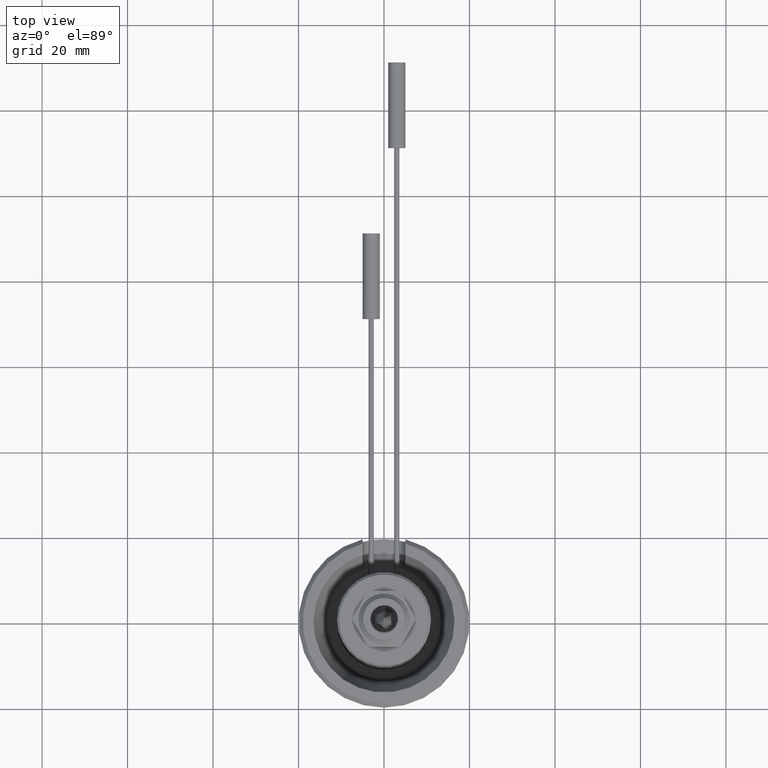
[diagram: clean part render]
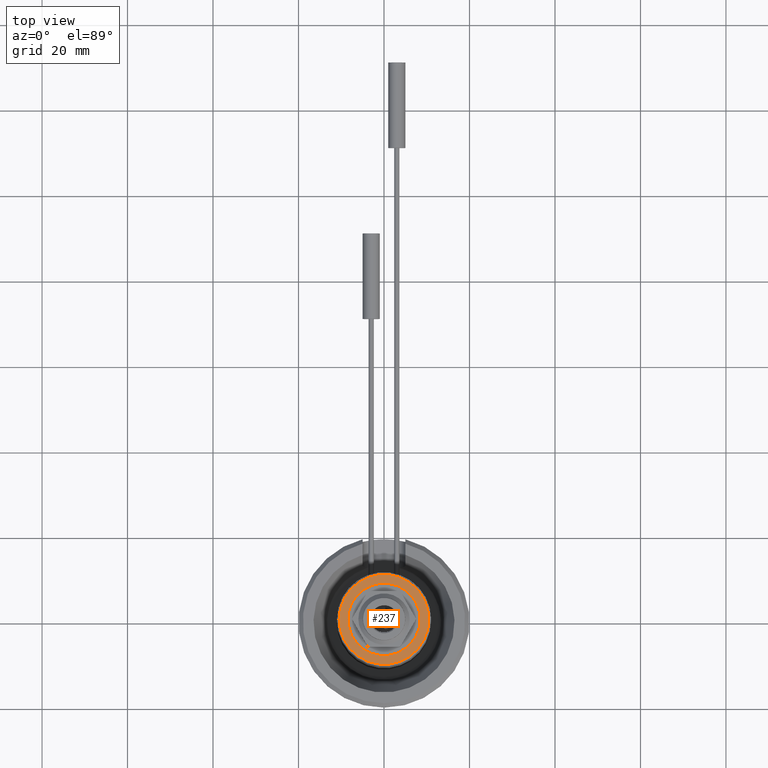
[diagram: same view with one face highlighted and labeled with its STEP entity id]
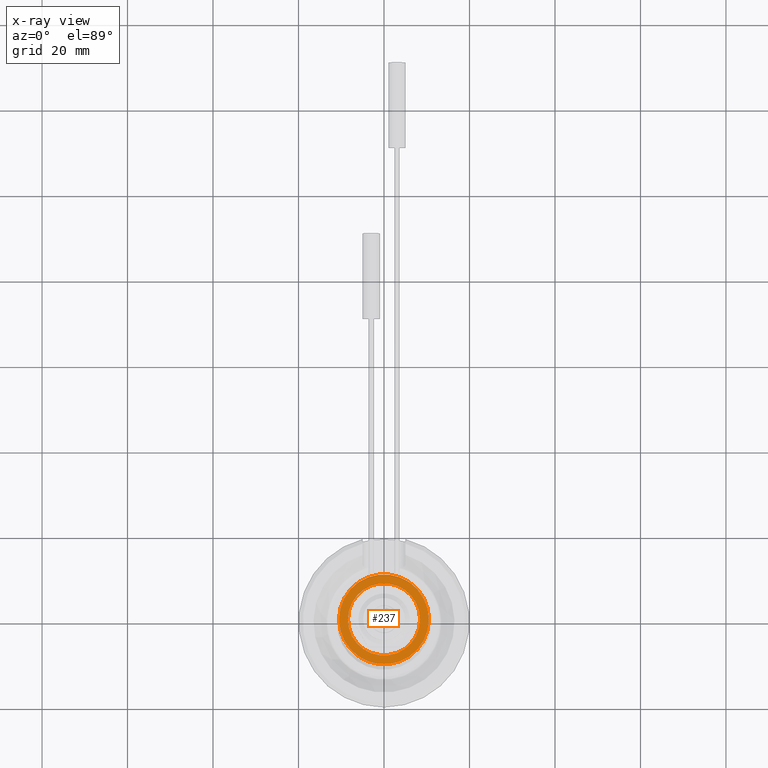
[diagram: x-ray of the same camera — body ghosted, the highlighted face saturated]
A machine part, top view. The second image highlights one B-rep face of the part: STEP entity #237.
The next image is the same camera in x-ray: the body ghosted, the highlighted face saturated — about 0% of this face is hidden behind the body in this view.
In plain terms, the highlighted planar face has unit normal (0, 0, -1).
Its self-contained STEP definition (entity closure, byte-faithful):
#59=PLANE('',#1156);
#237=ADVANCED_FACE('',(#351,#352),#59,.F.);
#351=FACE_BOUND('',#429,.T.);
#352=FACE_BOUND('',#430,.T.);
#429=EDGE_LOOP('',(#581));
#430=EDGE_LOOP('',(#582));
#581=ORIENTED_EDGE('',*,*,#960,.T.);
#582=ORIENTED_EDGE('',*,*,#961,.F.);
#847=VERTEX_POINT('',#1941);
#848=VERTEX_POINT('',#1943);
#960=EDGE_CURVE('',#847,#847,#1074,.T.);
#961=EDGE_CURVE('',#848,#848,#1075,.T.);
#1074=CIRCLE('',#1154,10.5);
#1075=CIRCLE('',#1155,8.45);
#1154=AXIS2_PLACEMENT_3D('',#1940,#1347,#1348);
#1155=AXIS2_PLACEMENT_3D('',#1942,#1349,#1350);
#1156=AXIS2_PLACEMENT_3D('',#1944,#1351,#1352);
#1347=DIRECTION('',(0.,0.,1.));
#1348=DIRECTION('',(-1.,0.,0.));
#1349=DIRECTION('',(0.,0.,1.));
#1350=DIRECTION('',(1.,0.,0.));
#1351=DIRECTION('',(0.,0.,-1.));
#1352=DIRECTION('',(-1.,0.,0.));
#1940=CARTESIAN_POINT('',(0.,0.,59.5));
#1941=CARTESIAN_POINT('',(-10.5,0.,59.5));
#1942=CARTESIAN_POINT('',(0.,0.,59.5));
#1943=CARTESIAN_POINT('',(8.45,0.,59.5));
#1944=CARTESIAN_POINT('',(-11.,0.,59.5));